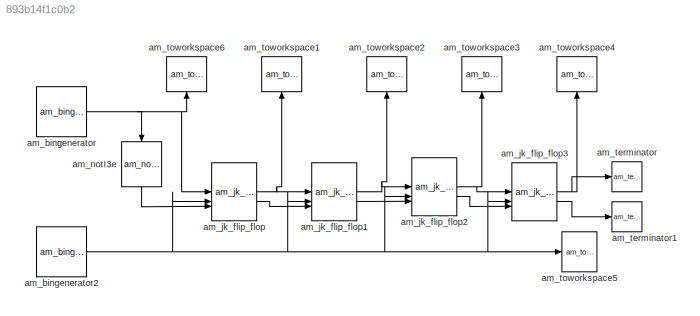
MODEL slx_893b14f1c0b2
KIND model
CONFIG AbsTol = auto
CONFIG EnableMultiTasking = off
CONFIG FixedStep = auto
CONFIG MaxStep = auto
CONFIG MinStep = auto
CONFIG RelTol = 1e-3
CONFIG SampleTimeConstraint = Unconstrained
CONFIG SolverName = VariableStepAuto
CONFIG StartTime = 0.0
CONFIG StopTime = 10.0
BLOCK [Reference] am_bingenerator  REF=StdLib/am_bingenerator
  SourceBlock = StdLib/am_bingenerator
  SourceType = Bingenerator
BLOCK [Reference] am_bingenerator2  REF=StdLib/am_bingenerator
  SourceBlock = StdLib/am_bingenerator
  SourceType = Bingenerator
BLOCK [Reference] am_jk_flip_flop  REF=StdLib/am_jk_flip_flop
  SourceBlock = StdLib/am_jk_flip_flop
  SourceProductName = FlipFlops
BLOCK [Reference] am_jk_flip_flop1  REF=StdLib/am_jk_flip_flop
  SourceBlock = StdLib/am_jk_flip_flop
  SourceProductName = FlipFlops
BLOCK [Reference] am_jk_flip_flop2  REF=StdLib/am_jk_flip_flop
  SourceBlock = StdLib/am_jk_flip_flop
  SourceProductName = FlipFlops
BLOCK [Reference] am_jk_flip_flop3  REF=StdLib/am_jk_flip_flop
  SourceBlock = StdLib/am_jk_flip_flop
  SourceProductName = FlipFlops
BLOCK [Reference] am_notI3e  REF=StdLib/am_notI3e
  NameLocation = left
  SourceBlock = StdLib/am_notI3e
  SourceProductName = Logic
  SourceType = Notgate
BLOCK [Reference] am_terminator  REF=StdLib/am_terminator
  SourceBlock = StdLib/am_terminator
  SourceType = Terminator
BLOCK [Reference] am_terminator1  REF=StdLib/am_terminator
  SourceBlock = StdLib/am_terminator
  SourceType = Terminator
BLOCK [Reference] am_toworkspace1  REF=StdLib/am_toworkspace
  NameLocation = right
  SourceBlock = StdLib/am_toworkspace
  SourceType = ToWorkspace
BLOCK [Reference] am_toworkspace2  REF=StdLib/am_toworkspace
  NameLocation = right
  SourceBlock = StdLib/am_toworkspace
  SourceType = ToWorkspace
BLOCK [Reference] am_toworkspace3  REF=StdLib/am_toworkspace
  NameLocation = right
  SourceBlock = StdLib/am_toworkspace
  SourceType = ToWorkspace
BLOCK [Reference] am_toworkspace4  REF=StdLib/am_toworkspace
  NameLocation = right
  SourceBlock = StdLib/am_toworkspace
  SourceType = ToWorkspace
BLOCK [Reference] am_toworkspace5  REF=StdLib/am_toworkspace
  SourceBlock = StdLib/am_toworkspace
  SourceType = ToWorkspace
BLOCK [Reference] am_toworkspace6  REF=StdLib/am_toworkspace
  NameLocation = right
  SourceBlock = StdLib/am_toworkspace
  SourceType = ToWorkspace
NET am_bingenerator2:1 -> am_jk_flip_flop1:2, am_jk_flip_flop2:2, am_jk_flip_flop3:2, am_jk_flip_flop:2, am_toworkspace5:1
NET am_bingenerator:1 -> am_jk_flip_flop:1, am_notI3e:1, am_toworkspace6:1
NET am_jk_flip_flop1:1 -> am_jk_flip_flop2:1, am_toworkspace2:1
LINE am_jk_flip_flop1:2 -> am_jk_flip_flop2:3
NET am_jk_flip_flop2:1 -> am_jk_flip_flop3:1, am_toworkspace3:1
LINE am_jk_flip_flop2:2 -> am_jk_flip_flop3:3
NET am_jk_flip_flop3:1 -> am_terminator:1, am_toworkspace4:1
LINE am_jk_flip_flop3:2 -> am_terminator1:1
NET am_jk_flip_flop:1 -> am_jk_flip_flop1:1, am_toworkspace1:1
LINE am_jk_flip_flop:2 -> am_jk_flip_flop1:3
LINE am_notI3e:1 -> am_jk_flip_flop:3
note: NET lines group one-source signal fan-out (src -> all destinations, sorted); 1:1 wires keep LINE
